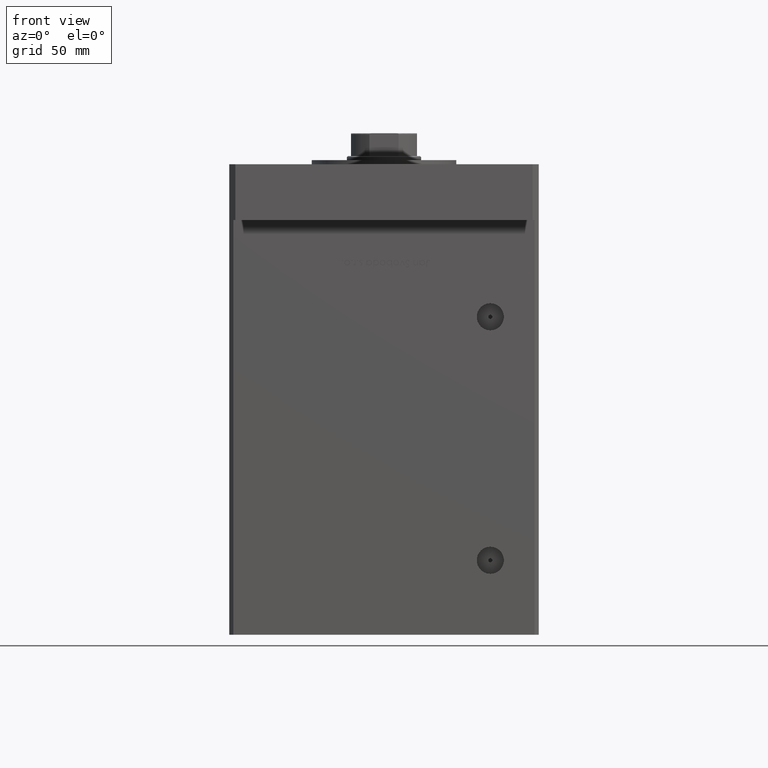
[diagram: clean part render]
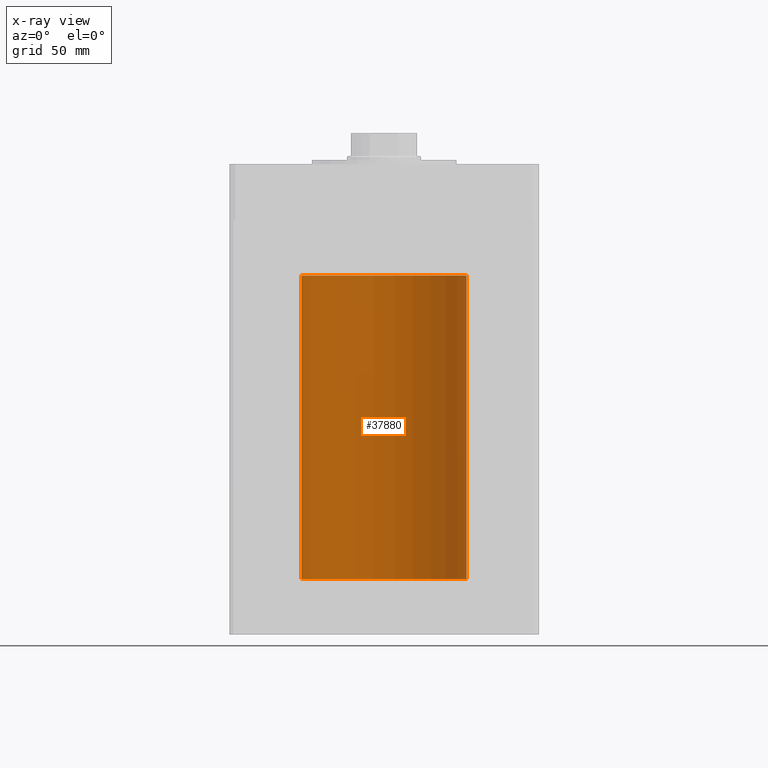
[diagram: x-ray — body ghosted, one internal face saturated and labeled with its STEP entity id]
A machine part, front view, then the same camera in x-ray: the body is ghosted and one INTERNAL B-rep face — a face not visible from any outside direction — is saturated and labeled: STEP entity #37880.
In plain terms, the highlighted cylindrical surface (partial cylindrical patch) has radius 40 mm, axis along (-0, -0, -1).
Its self-contained STEP definition (entity closure, byte-faithful):
#380 = CARTESIAN_POINT ( 'NONE',  ( -40.00000000000000000, 0.000000000000000000, 147.0000000000000000 ) ) ;
#1668 = CIRCLE ( 'NONE', #30166, 40.00000000000000000 ) ;
#2554 = CIRCLE ( 'NONE', #9459, 40.00000000000000000 ) ;
#3018 = EDGE_CURVE ( 'NONE', #34284, #26071, #1668, .T. ) ;
#4159 = CARTESIAN_POINT ( 'NONE',  ( 0.000000000000000000, 0.000000000000000000, 0.000000000000000000 ) ) ;
#6363 = VECTOR ( 'NONE', #11147, 1000.000000000000000 ) ;
#8576 = CARTESIAN_POINT ( 'NONE',  ( 40.00000000000000000, 4.898587196589413026E-15, 0.000000000000000000 ) ) ;
#8948 = DIRECTION ( 'NONE',  ( -0.000000000000000000, -0.000000000000000000, -1.000000000000000000 ) ) ;
#9459 = AXIS2_PLACEMENT_3D ( 'NONE', #19861, #47456, #10383 ) ;
#10159 = CARTESIAN_POINT ( 'NONE',  ( 40.00000000000000000, 4.898587196589413026E-15, 147.0000000000000000 ) ) ;
#10383 = DIRECTION ( 'NONE',  ( 1.000000000000000000, 0.000000000000000000, 0.000000000000000000 ) ) ;
#11147 = DIRECTION ( 'NONE',  ( -0.000000000000000000, -0.000000000000000000, -1.000000000000000000 ) ) ;
#11501 = AXIS2_PLACEMENT_3D ( 'NONE', #39721, #8948, #41967 ) ;
#13939 = ORIENTED_EDGE ( 'NONE', *, *, #3018, .F. ) ;
#14241 = LINE ( 'NONE', #10159, #27986 ) ;
#15752 = VERTEX_POINT ( 'NONE', #39160 ) ;
#18792 = ORIENTED_EDGE ( 'NONE', *, *, #46074, .T. ) ;
#18908 = CYLINDRICAL_SURFACE ( 'NONE', #11501, 40.00000000000000000 ) ;
#19303 = LINE ( 'NONE', #35237, #6363 ) ;
#19861 = CARTESIAN_POINT ( 'NONE',  ( 0.000000000000000000, 0.000000000000000000, 147.0000000000000000 ) ) ;
#20420 = DIRECTION ( 'NONE',  ( 1.000000000000000000, 0.000000000000000000, 0.000000000000000000 ) ) ;
#25585 = CARTESIAN_POINT ( 'NONE',  ( -40.00000000000000000, 0.000000000000000000, 0.000000000000000000 ) ) ;
#26071 = VERTEX_POINT ( 'NONE', #25585 ) ;
#26680 = DIRECTION ( 'NONE',  ( -0.000000000000000000, -0.000000000000000000, -1.000000000000000000 ) ) ;
#27986 = VECTOR ( 'NONE', #26680, 1000.000000000000000 ) ;
#28527 = VERTEX_POINT ( 'NONE', #380 ) ;
#28699 = EDGE_CURVE ( 'NONE', #15752, #28527, #2554, .T. ) ;
#29045 = DIRECTION ( 'NONE',  ( -0.000000000000000000, 0.000000000000000000, 1.000000000000000000 ) ) ;
#30166 = AXIS2_PLACEMENT_3D ( 'NONE', #4159, #29045, #20420 ) ;
#33923 = ORIENTED_EDGE ( 'NONE', *, *, #28699, .T. ) ;
#34284 = VERTEX_POINT ( 'NONE', #8576 ) ;
#35237 = CARTESIAN_POINT ( 'NONE',  ( -40.00000000000000000, 0.000000000000000000, 147.0000000000000000 ) ) ;
#37880 = ADVANCED_FACE ( 'NONE', ( #52187 ), #18908, .F. ) ;
#39160 = CARTESIAN_POINT ( 'NONE',  ( 40.00000000000000000, 4.898587196589413026E-15, 147.0000000000000000 ) ) ;
#39721 = CARTESIAN_POINT ( 'NONE',  ( 0.000000000000000000, 0.000000000000000000, 147.0000000000000000 ) ) ;
#41967 = DIRECTION ( 'NONE',  ( -1.000000000000000000, 0.000000000000000000, 0.000000000000000000 ) ) ;
#46074 = EDGE_CURVE ( 'NONE', #28527, #26071, #19303, .T. ) ;
#47167 = EDGE_CURVE ( 'NONE', #15752, #34284, #14241, .T. ) ;
#47456 = DIRECTION ( 'NONE',  ( -0.000000000000000000, 0.000000000000000000, 1.000000000000000000 ) ) ;
#49939 = EDGE_LOOP ( 'NONE', ( #52842, #33923, #18792, #13939 ) ) ;
#52187 = FACE_OUTER_BOUND ( 'NONE', #49939, .T. ) ;
#52842 = ORIENTED_EDGE ( 'NONE', *, *, #47167, .F. ) ;